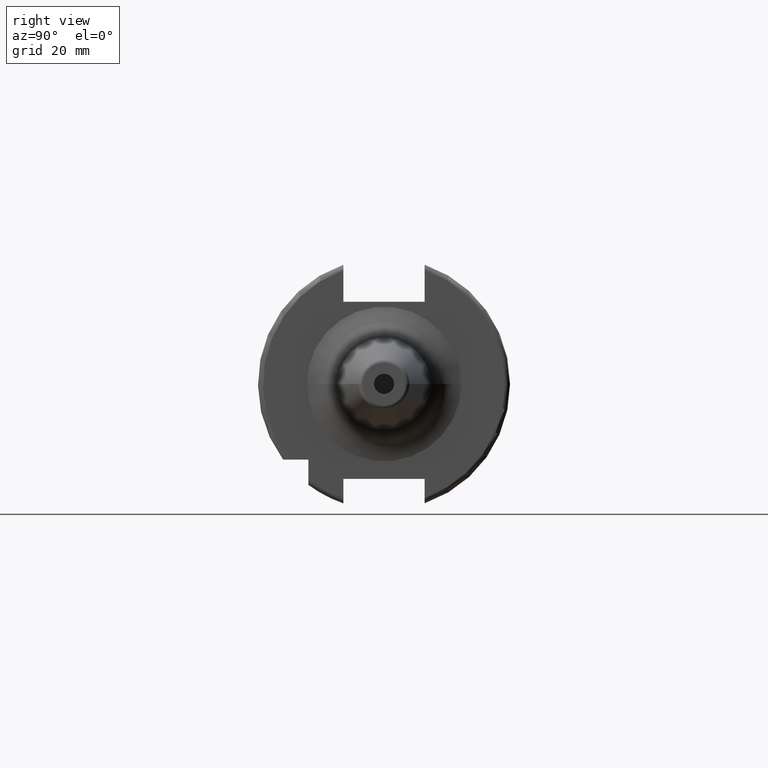
[diagram: clean part render]
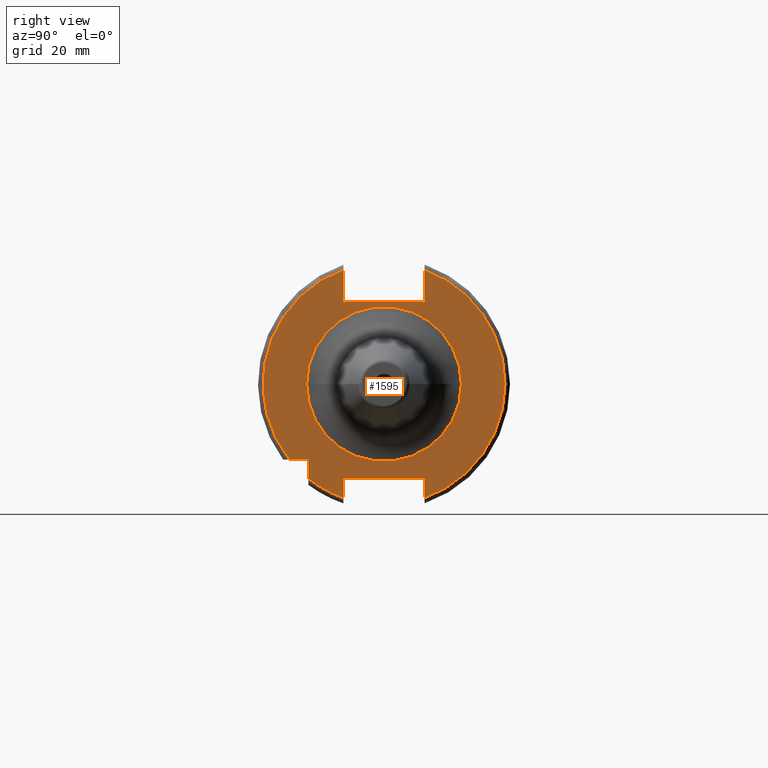
[diagram: same view with one face highlighted and labeled with its STEP entity id]
A machine part, right view. The second image highlights one B-rep face of the part: STEP entity #1595.
In plain terms, the highlighted planar face has unit normal (1, 0, 0).
Its self-contained STEP definition (entity closure, byte-faithful):
#136=DIRECTION('',(0.E0,0.E0,1.E0));
#137=VECTOR('',#136,3.799061927434E0);
#138=CARTESIAN_POINT('',(1.905E1,8.05E0,-2.259906192743E1));
#139=LINE('',#138,#137);
#140=DIRECTION('',(0.E0,-1.E0,0.E0));
#141=VECTOR('',#140,1.61E1);
#142=CARTESIAN_POINT('',(1.905E1,8.05E0,-1.88E1));
#143=LINE('',#142,#141);
#144=DIRECTION('',(0.E0,0.E0,1.E0));
#145=VECTOR('',#144,3.799061927434E0);
#146=CARTESIAN_POINT('',(1.905E1,-8.05E0,-2.259906192743E1));
#147=LINE('',#146,#145);
#148=DIRECTION('',(0.E0,0.E0,1.E0));
#149=VECTOR('',#148,3.722182030949E0);
#150=CARTESIAN_POINT('',(1.905E1,-1.5E1,-1.872218203095E1));
#151=LINE('',#150,#149);
#152=DIRECTION('',(0.E0,1.E0,0.E0));
#153=VECTOR('',#152,3.722182030949E0);
#154=CARTESIAN_POINT('',(1.905E1,-1.872218203095E1,-1.5E1));
#155=LINE('',#154,#153);
#156=DIRECTION('',(0.E0,0.E0,-1.E0));
#157=VECTOR('',#156,6.299061927434E0);
#158=CARTESIAN_POINT('',(1.905E1,-8.05E0,2.259906192743E1));
#159=LINE('',#158,#157);
#160=DIRECTION('',(0.E0,1.E0,0.E0));
#161=VECTOR('',#160,1.61E1);
#162=CARTESIAN_POINT('',(1.905E1,-8.05E0,1.63E1));
#163=LINE('',#162,#161);
#164=DIRECTION('',(0.E0,0.E0,-1.E0));
#165=VECTOR('',#164,6.299061927434E0);
#166=CARTESIAN_POINT('',(1.905E1,8.05E0,2.259906192743E1));
#167=LINE('',#166,#165);
#168=CARTESIAN_POINT('',(1.905E1,0.E0,0.E0));
#169=DIRECTION('',(1.E0,0.E0,0.E0));
#170=DIRECTION('',(0.E0,-1.E0,0.E0));
#171=AXIS2_PLACEMENT_3D('',#168,#169,#170);
#173=CARTESIAN_POINT('',(1.905E1,0.E0,0.E0));
#174=DIRECTION('',(1.E0,0.E0,0.E0));
#175=DIRECTION('',(0.E0,1.E0,0.E0));
#176=AXIS2_PLACEMENT_3D('',#173,#174,#175);
#640=CARTESIAN_POINT('',(1.905E1,0.E0,0.E0));
#641=DIRECTION('',(-1.E0,0.E0,0.E0));
#642=DIRECTION('',(0.E0,-3.355564818674E-1,-9.420200886800E-1));
#643=AXIS2_PLACEMENT_3D('',#640,#641,#642);
#645=CARTESIAN_POINT('',(1.905E1,0.E0,0.E0));
#646=DIRECTION('',(1.E0,0.E0,0.E0));
#647=DIRECTION('',(0.E0,-3.355564818674E-1,9.420200886800E-1));
#648=AXIS2_PLACEMENT_3D('',#645,#646,#647);
#692=CARTESIAN_POINT('',(1.905E1,0.E0,0.E0));
#693=DIRECTION('',(1.E0,0.E0,0.E0));
#694=DIRECTION('',(0.E0,3.355564818674E-1,-9.420200886800E-1));
#695=AXIS2_PLACEMENT_3D('',#692,#693,#694);
#1284=CARTESIAN_POINT('',(1.905E1,8.05E0,-2.259906192743E1));
#1285=CARTESIAN_POINT('',(1.905E1,8.05E0,-1.88E1));
#1286=VERTEX_POINT('',#1284);
#1287=VERTEX_POINT('',#1285);
#1288=CARTESIAN_POINT('',(1.905E1,-8.05E0,-1.88E1));
#1289=VERTEX_POINT('',#1288);
#1290=CARTESIAN_POINT('',(1.905E1,-8.05E0,-2.259906192743E1));
#1291=VERTEX_POINT('',#1290);
#1292=CARTESIAN_POINT('',(1.905E1,-8.05E0,2.259906192743E1));
#1293=CARTESIAN_POINT('',(1.905E1,-8.05E0,1.63E1));
#1294=VERTEX_POINT('',#1292);
#1295=VERTEX_POINT('',#1293);
#1296=CARTESIAN_POINT('',(1.905E1,8.05E0,1.63E1));
#1297=VERTEX_POINT('',#1296);
#1298=CARTESIAN_POINT('',(1.905E1,8.05E0,2.259906192743E1));
#1299=VERTEX_POINT('',#1298);
#1300=CARTESIAN_POINT('',(1.905E1,-1.5E1,-1.872218203095E1));
#1301=CARTESIAN_POINT('',(1.905E1,-1.5E1,-1.5E1));
#1302=VERTEX_POINT('',#1300);
#1303=VERTEX_POINT('',#1301);
#1304=CARTESIAN_POINT('',(1.905E1,-1.872218203095E1,-1.5E1));
#1305=VERTEX_POINT('',#1304);
#1364=CARTESIAN_POINT('',(1.905E1,-1.534321198091E1,0.E0));
#1365=CARTESIAN_POINT('',(1.905E1,1.534321198091E1,0.E0));
#1366=VERTEX_POINT('',#1364);
#1367=VERTEX_POINT('',#1365);
#1561=CARTESIAN_POINT('',(1.905E1,0.E0,0.E0));
#1562=DIRECTION('',(1.E0,0.E0,0.E0));
#1563=DIRECTION('',(0.E0,-1.E0,0.E0));
#1564=AXIS2_PLACEMENT_3D('',#1561,#1562,#1563);
#1565=PLANE('',#1564);
#1567=ORIENTED_EDGE('',*,*,#1566,.T.);
#1569=ORIENTED_EDGE('',*,*,#1568,.T.);
#1571=ORIENTED_EDGE('',*,*,#1570,.F.);
#1573=ORIENTED_EDGE('',*,*,#1572,.T.);
#1575=ORIENTED_EDGE('',*,*,#1574,.T.);
#1577=ORIENTED_EDGE('',*,*,#1576,.F.);
#1579=ORIENTED_EDGE('',*,*,#1578,.F.);
#1581=ORIENTED_EDGE('',*,*,#1580,.T.);
#1582=ORIENTED_EDGE('',*,*,#1547,.T.);
#1584=ORIENTED_EDGE('',*,*,#1583,.F.);
#1586=ORIENTED_EDGE('',*,*,#1585,.F.);
#1587=EDGE_LOOP('',(#1567,#1569,#1571,#1573,#1575,#1577,#1579,#1581,#1582,#1584,
#1586));
#1588=FACE_OUTER_BOUND('',#1587,.F.);
#1590=ORIENTED_EDGE('',*,*,#1589,.T.);
#1592=ORIENTED_EDGE('',*,*,#1591,.T.);
#1593=EDGE_LOOP('',(#1590,#1592));
#1594=FACE_BOUND('',#1593,.F.);
#1595=ADVANCED_FACE('',(#1588,#1594),#1565,.T.);
#172=CIRCLE('',#171,1.534321198091E1);
#177=CIRCLE('',#176,1.534321198091E1);
#644=CIRCLE('',#643,2.399E1);
#649=CIRCLE('',#648,2.399E1);
#696=CIRCLE('',#695,2.399E1);
#1547=EDGE_CURVE('',#1295,#1297,#163,.T.);
#1566=EDGE_CURVE('',#1286,#1287,#139,.T.);
#1568=EDGE_CURVE('',#1287,#1289,#143,.T.);
#1570=EDGE_CURVE('',#1291,#1289,#147,.T.);
#1572=EDGE_CURVE('',#1291,#1302,#644,.T.);
#1574=EDGE_CURVE('',#1302,#1303,#151,.T.);
#1576=EDGE_CURVE('',#1305,#1303,#155,.T.);
#1578=EDGE_CURVE('',#1294,#1305,#649,.T.);
#1580=EDGE_CURVE('',#1294,#1295,#159,.T.);
#1583=EDGE_CURVE('',#1299,#1297,#167,.T.);
#1585=EDGE_CURVE('',#1286,#1299,#696,.T.);
#1589=EDGE_CURVE('',#1366,#1367,#172,.T.);
#1591=EDGE_CURVE('',#1367,#1366,#177,.T.);